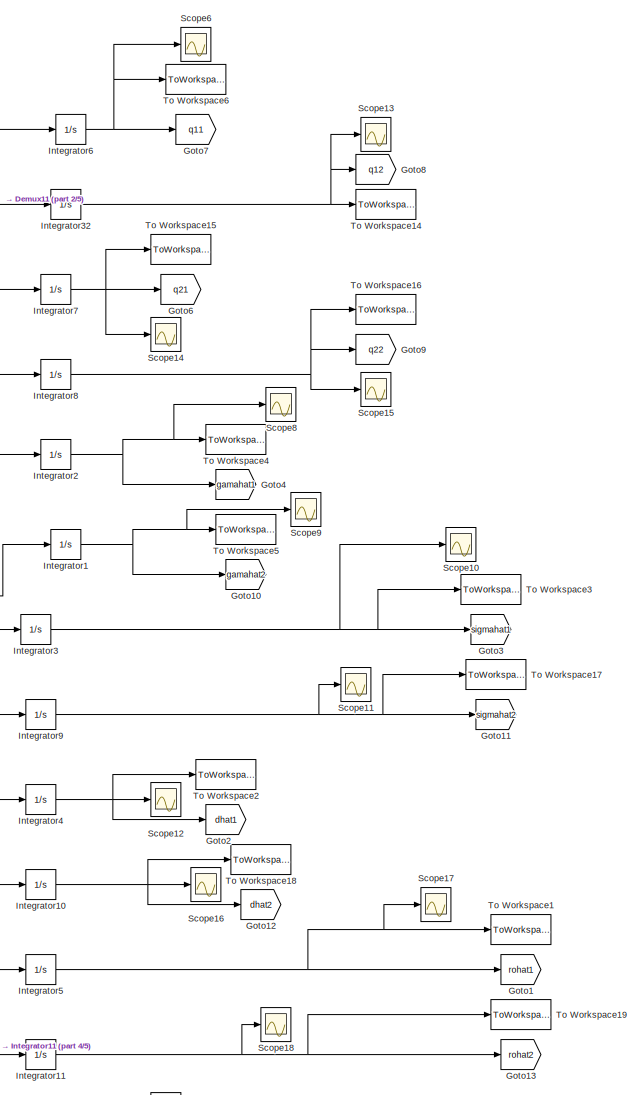
[diagram: root canvas - part 1/5, top right region]
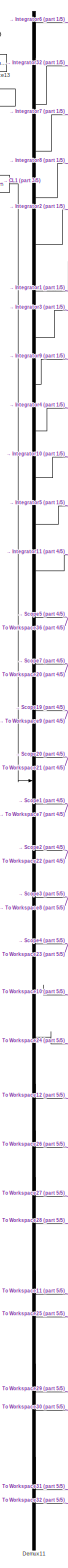
[diagram: root canvas - part 2/5, center side, full height]
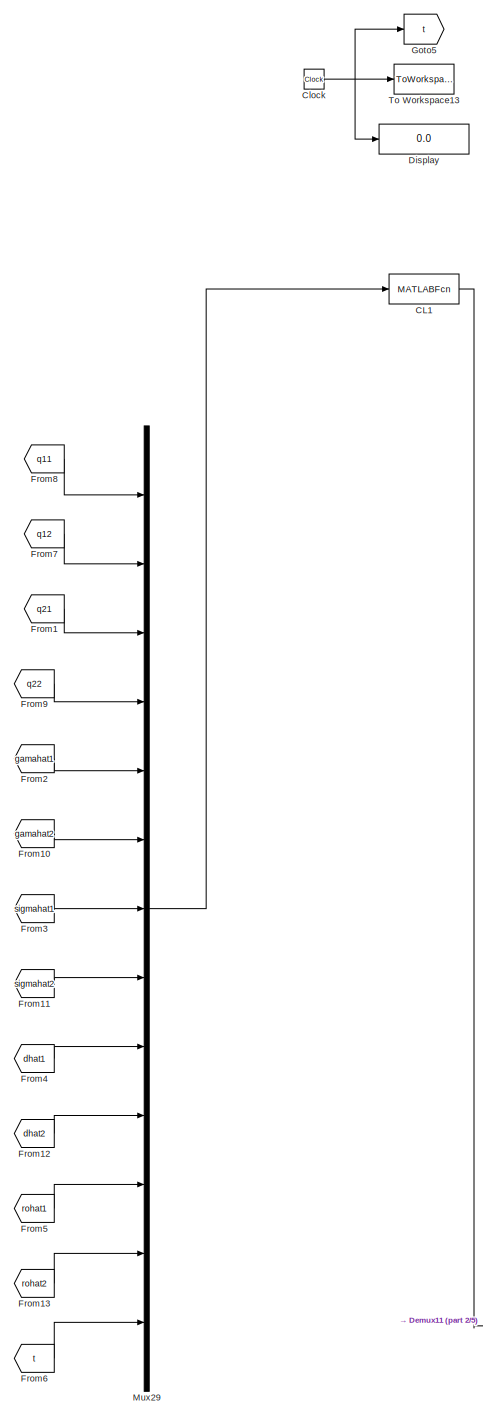
[diagram: root canvas - part 3/5, top left region]
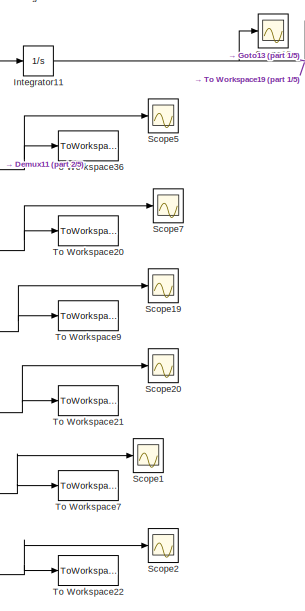
[diagram: root canvas - part 4/5, central region]
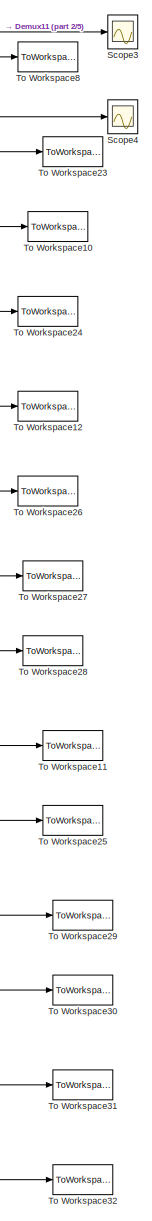
[diagram: root canvas - part 5/5, bottom center region]
MODEL slx_3bc52284052b
KIND model
CONFIG AbsTol = auto
CONFIG EnableMultiTasking = off
CONFIG FixedStep = auto
CONFIG MaxStep = auto
CONFIG MinStep = auto
CONFIG RelTol = 1e-3
CONFIG SampleTimeConstraint = Unconstrained
CONFIG SolverName = VariableStepAuto
CONFIG StartTime = 0.0
CONFIG StopTime = 10
BLOCK [MATLABFcn] CL1
  MATLABFcn = MEMS_fixedControl
  Output1D = off
  OutputDimensions = 32
  Ports = [1, 1]
BLOCK [Clock] Clock
  Decimation = 1000
BLOCK [Demux] Demux11
  Outputs = 32
  Ports = [1, 32]
BLOCK [Display] Display
  Decimation = 1000
  Ports = [1]
BLOCK [From] From1
  GotoTag = q21
  TagVisibility = global
BLOCK [From] From10
  GotoTag = gamahat2
  TagVisibility = global
BLOCK [From] From11
  GotoTag = sigmahat2
  TagVisibility = global
BLOCK [From] From12
  GotoTag = dhat2
  TagVisibility = global
BLOCK [From] From13
  GotoTag = rohat2
  TagVisibility = global
BLOCK [From] From2
  GotoTag = gamahat1
  TagVisibility = global
BLOCK [From] From3
  GotoTag = sigmahat1
  TagVisibility = global
BLOCK [From] From4
  GotoTag = dhat1
  TagVisibility = global
BLOCK [From] From5
  GotoTag = rohat1
  TagVisibility = global
BLOCK [From] From6
  GotoTag = t
  TagVisibility = global
BLOCK [From] From7
  GotoTag = q12
  TagVisibility = global
BLOCK [From] From8
  GotoTag = q11
  TagVisibility = global
BLOCK [From] From9
  GotoTag = q22
  TagVisibility = global
BLOCK [Goto] Goto1
  GotoTag = rohat1
  TagVisibility = global
BLOCK [Goto] Goto10
  GotoTag = gamahat2
  TagVisibility = global
BLOCK [Goto] Goto11
  GotoTag = sigmahat2
  TagVisibility = global
BLOCK [Goto] Goto12
  GotoTag = dhat2
  TagVisibility = global
BLOCK [Goto] Goto13
  GotoTag = rohat2
  TagVisibility = global
BLOCK [Goto] Goto2
  GotoTag = dhat1
  TagVisibility = global
BLOCK [Goto] Goto3
  GotoTag = sigmahat1
  TagVisibility = global
BLOCK [Goto] Goto4
  GotoTag = gamahat1
  TagVisibility = global
BLOCK [Goto] Goto5
  GotoTag = t
  TagVisibility = global
BLOCK [Goto] Goto6
  GotoTag = q21
  TagVisibility = global
BLOCK [Goto] Goto7
  GotoTag = q11
  TagVisibility = global
BLOCK [Goto] Goto8
  GotoTag = q12
  TagVisibility = global
BLOCK [Goto] Goto9
  GotoTag = q22
  TagVisibility = global
BLOCK [Integrator] Integrator1
  InitialCondition = -2
  Ports = [1, 1]
BLOCK [Integrator] Integrator10
  InitialCondition = 0.75
  Ports = [1, 1]
BLOCK [Integrator] Integrator11
  InitialCondition = 1
  Ports = [1, 1]
BLOCK [Integrator] Integrator2
  InitialCondition = -2
  Ports = [1, 1]
BLOCK [Integrator] Integrator3
  InitialCondition = -1.25
  Ports = [1, 1]
BLOCK [Integrator] Integrator32
  InitialCondition = -0.38
  Ports = [1, 1]
BLOCK [Integrator] Integrator4
  InitialCondition = 0.6
  Ports = [1, 1]
BLOCK [Integrator] Integrator5
  InitialCondition = 1
  Ports = [1, 1]
BLOCK [Integrator] Integrator6
  InitialCondition = -0.73
  Ports = [1, 1]
BLOCK [Integrator] Integrator7
  Ports = [1, 1]
BLOCK [Integrator] Integrator8
  Ports = [1, 1]
BLOCK [Integrator] Integrator9
  InitialCondition = -1.25
  Ports = [1, 1]
BLOCK [Mux] Mux29
  DisplayOption = bar
  Inputs = 13
  Ports = [13, 1]
BLOCK [Scope] Scope1
  Floating = off
  NumInputPorts = 1
  Ports = [1]
  ScopeSpecificationString = Simulink.scopes.TimeScopeBlockCfg('CurrentConfiguration', extmgr.ConfigurationSet(extmgr.Configuration('Core','General UI',true),extmgr.Configuration('Core','Source UI',true),extmgr.Configuration('Sources','WiredSimulink',true,'DataLoggingSaveFormat','StructureWithTime','DataLoggingLimitDataPoints',true,'DataLoggingDecimation','1','DataLoggingDecimateData',true,'DataLoggingVariableName','ScopeData...<+1715ch>  <repeated x3 — deduplicated; at blocks: Scope1, Scope10, Scope2>
BLOCK [Scope] Scope10
  Floating = off
  NumInputPorts = 1
  Ports = [1]
BLOCK [Scope] Scope11
  Floating = off
  NumInputPorts = 1
  Ports = [1]
  ScopeSpecificationString = Simulink.scopes.TimeScopeBlockCfg('CurrentConfiguration', extmgr.ConfigurationSet(extmgr.Configuration('Core','General UI',true),extmgr.Configuration('Core','Source UI',true),extmgr.Configuration('Sources','WiredSimulink',true,'DataLoggingSaveFormat','StructureWithTime','DataLoggingLimitDataPoints',true,'DataLoggingDecimation','1','DataLoggingDecimateData',true,'DataLoggingVariableName','ScopeData...<+1707ch>
BLOCK [Scope] Scope12
  Floating = off
  NumInputPorts = 1
  Ports = [1]
  ScopeSpecificationString = Simulink.scopes.TimeScopeBlockCfg('CurrentConfiguration', extmgr.ConfigurationSet(extmgr.Configuration('Core','General UI',true),extmgr.Configuration('Core','Source UI',true),extmgr.Configuration('Sources','WiredSimulink',true,'DataLoggingSaveFormat','StructureWithTime','DataLoggingLimitDataPoints',true,'DataLoggingDecimation','1','DataLoggingDecimateData',true,'DataLoggingVariableName','ScopeData...<+1713ch>  <repeated x4 — deduplicated; at blocks: Scope12, Scope14, Scope16, Scope18>
BLOCK [Scope] Scope13
  Floating = off
  NameLocation = right
  NumInputPorts = 1
  Ports = [1]
  ScopeSpecificationString = Simulink.scopes.TimeScopeBlockCfg('CurrentConfiguration', extmgr.ConfigurationSet(extmgr.Configuration('Core','General UI',true),extmgr.Configuration('Core','Source UI',true),extmgr.Configuration('Sources','WiredSimulink',true,'DataLoggingSaveFormat','StructureWithTime','DataLoggingLimitDataPoints',true,'DataLoggingDecimation','1','DataLoggingDecimateData',true,'DataLoggingVariableName','ScopeData...<+1727ch>
BLOCK [Scope] Scope14
  Floating = off
  NumInputPorts = 1
  Ports = [1]
BLOCK [Scope] Scope15
  Floating = off
  NumInputPorts = 1
  Ports = [1]
  ScopeSpecificationString = Simulink.scopes.TimeScopeBlockCfg('CurrentConfiguration', extmgr.ConfigurationSet(extmgr.Configuration('Core','General UI',true),extmgr.Configuration('Core','Source UI',true),extmgr.Configuration('Sources','WiredSimulink',true,'DataLoggingSaveFormat','StructureWithTime','DataLoggingLimitDataPoints',true,'DataLoggingDecimation','1','DataLoggingDecimateData',true,'DataLoggingVariableName','ScopeData...<+1716ch>
BLOCK [Scope] Scope16
  Floating = off
  NumInputPorts = 1
  Ports = [1]
BLOCK [Scope] Scope17
  Floating = off
  NumInputPorts = 1
  Ports = [1]
  ScopeSpecificationString = Simulink.scopes.TimeScopeBlockCfg('CurrentConfiguration', extmgr.ConfigurationSet(extmgr.Configuration('Core','General UI',true),extmgr.Configuration('Core','Source UI',true),extmgr.Configuration('Sources','WiredSimulink',true,'DataLoggingSaveFormat','StructureWithTime','DataLoggingLimitDataPoints',true,'DataLoggingDecimation','1','DataLoggingDecimateData',true,'DataLoggingVariableName','ScopeData...<+1719ch>
BLOCK [Scope] Scope18
  Floating = off
  NumInputPorts = 1
  Ports = [1]
BLOCK [Scope] Scope19
  Floating = off
  NumInputPorts = 1
  Ports = [1]
  ScopeSpecificationString = Simulink.scopes.TimeScopeBlockCfg('CurrentConfiguration', extmgr.ConfigurationSet(extmgr.Configuration('Core','General UI',true),extmgr.Configuration('Core','Source UI',true),extmgr.Configuration('Sources','WiredSimulink',true,'DataLoggingSaveFormat','StructureWithTime','DataLoggingLimitDataPoints',true,'DataLoggingDecimation','1','DataLoggingDecimateData',true,'DataLoggingVariableName','ScopeData...<+1736ch>
BLOCK [Scope] Scope2
  Floating = off
  NumInputPorts = 1
  Ports = [1]
BLOCK [Scope] Scope20
  Floating = off
  NumInputPorts = 1
  Ports = [1]
  ScopeSpecificationString = Simulink.scopes.TimeScopeBlockCfg('CurrentConfiguration', extmgr.ConfigurationSet(extmgr.Configuration('Core','General UI',true),extmgr.Configuration('Core','Source UI',true),extmgr.Configuration('Sources','WiredSimulink',true,'DataLoggingSaveFormat','StructureWithTime','DataLoggingLimitDataPoints',true,'DataLoggingDecimation','1','DataLoggingDecimateData',true,'DataLoggingVariableName','ScopeData...<+1732ch>
BLOCK [Scope] Scope3
  Floating = off
  NumInputPorts = 1
  Ports = [1]
  ScopeSpecificationString = Simulink.scopes.TimeScopeBlockCfg('CurrentConfiguration', extmgr.ConfigurationSet(extmgr.Configuration('Core','General UI',true),extmgr.Configuration('Core','Source UI',true),extmgr.Configuration('Sources','WiredSimulink',true,'DataLoggingSaveFormat','StructureWithTime','DataLoggingLimitDataPoints',true,'DataLoggingDecimation','1','DataLoggingDecimateData',true,'DataLoggingVariableName','ScopeData...<+1718ch>
BLOCK [Scope] Scope4
  Floating = off
  NumInputPorts = 1
  Ports = [1]
  ScopeSpecificationString = Simulink.scopes.TimeScopeBlockCfg('CurrentConfiguration', extmgr.ConfigurationSet(extmgr.Configuration('Core','General UI',true),extmgr.Configuration('Core','Source UI',true),extmgr.Configuration('Sources','WiredSimulink',true,'DataLoggingSaveFormat','StructureWithTime','DataLoggingLimitDataPoints',true,'DataLoggingDecimation','1','DataLoggingDecimateData',true,'DataLoggingVariableName','ScopeData...<+1717ch>
BLOCK [Scope] Scope5
  Floating = off
  NumInputPorts = 1
  Ports = [1]
  ScopeSpecificationString = Simulink.scopes.TimeScopeBlockCfg('CurrentConfiguration', extmgr.ConfigurationSet(extmgr.Configuration('Core','General UI',true),extmgr.Configuration('Core','Source UI',true),extmgr.Configuration('Sources','WiredSimulink',true,'DataLoggingSaveFormat','StructureWithTime','DataLoggingLimitDataPoints',true,'DataLoggingDecimation','1','DataLoggingDecimateData',true,'DataLoggingVariableName','ScopeData...<+1739ch>
BLOCK [Scope] Scope6
  Floating = off
  NumInputPorts = 1
  Ports = [1]
  ScopeSpecificationString = Simulink.scopes.TimeScopeBlockCfg('CurrentConfiguration', extmgr.ConfigurationSet(extmgr.Configuration('Core','General UI',true),extmgr.Configuration('Core','Source UI',true),extmgr.Configuration('Sources','WiredSimulink',true,'DataLoggingSaveFormat','StructureWithTime','DataLoggingLimitDataPoints',true,'DataLoggingDecimation','1','DataLoggingDecimateData',true,'DataLoggingVariableName','ScopeData...<+1721ch>
BLOCK [Scope] Scope7
  Floating = off
  NumInputPorts = 1
  Ports = [1]
  ScopeSpecificationString = Simulink.scopes.TimeScopeBlockCfg('CurrentConfiguration', extmgr.ConfigurationSet(extmgr.Configuration('Core','General UI',true),extmgr.Configuration('Core','Source UI',true),extmgr.Configuration('Sources','WiredSimulink',true,'DataLoggingSaveFormat','StructureWithTime','DataLoggingLimitDataPoints',true,'DataLoggingDecimation','1','DataLoggingDecimateData',true,'DataLoggingVariableName','ScopeData...<+1765ch>
BLOCK [Scope] Scope8
  Floating = off
  NumInputPorts = 1
  Ports = [1]
  ScopeSpecificationString = Simulink.scopes.TimeScopeBlockCfg('CurrentConfiguration', extmgr.ConfigurationSet(extmgr.Configuration('Core','General UI',true),extmgr.Configuration('Core','Source UI',true),extmgr.Configuration('Sources','WiredSimulink',true,'DataLoggingSaveFormat','StructureWithTime','DataLoggingLimitDataPoints',true,'DataLoggingDecimation','1','DataLoggingDecimateData',true,'DataLoggingVariableName','ScopeData...<+1718ch>
BLOCK [Scope] Scope9
  Floating = off
  NumInputPorts = 1
  Ports = [1]
  ScopeSpecificationString = Simulink.scopes.TimeScopeBlockCfg('CurrentConfiguration', extmgr.ConfigurationSet(extmgr.Configuration('Core','General UI',true),extmgr.Configuration('Core','Source UI',true),extmgr.Configuration('Sources','WiredSimulink',true,'DataLoggingSaveFormat','StructureWithTime','DataLoggingLimitDataPoints',true,'DataLoggingDecimation','1','DataLoggingDecimateData',true,'DataLoggingVariableName','ScopeData...<+1716ch>
BLOCK [ToWorkspace] To Workspace1
  MaxDataPoints = inf
  Ports = [1]
  SampleTime = 0.001
  Save2DSignal = 2-D array (concatenate along first dimension)
  VariableName = rohat1
BLOCK [ToWorkspace] To Workspace10
  MaxDataPoints = inf
  Ports = [1]
  SampleTime = 0.001
  Save2DSignal = 2-D array (concatenate along first dimension)
  VariableName = p1
BLOCK [ToWorkspace] To Workspace11
  MaxDataPoints = inf
  Ports = [1]
  SampleTime = 0.001
  Save2DSignal = 2-D array (concatenate along first dimension)
  VariableName = sigma1
BLOCK [ToWorkspace] To Workspace12
  MaxDataPoints = inf
  Ports = [1]
  SampleTime = 0.001
  Save2DSignal = 2-D array (concatenate along first dimension)
  VariableName = x1des
BLOCK [ToWorkspace] To Workspace13
  MaxDataPoints = inf
  Ports = [1]
  SampleTime = 0.001
  Save2DSignal = 2-D array (concatenate along first dimension)
  VariableName = t
BLOCK [ToWorkspace] To Workspace14
  MaxDataPoints = inf
  Ports = [1]
  SampleTime = 0.001
  Save2DSignal = 2-D array (concatenate along first dimension)
  VariableName = q12
BLOCK [ToWorkspace] To Workspace15
  MaxDataPoints = inf
  Ports = [1]
  SampleTime = 0.001
  Save2DSignal = 2-D array (concatenate along first dimension)
  VariableName = q21
BLOCK [ToWorkspace] To Workspace16
  MaxDataPoints = inf
  Ports = [1]
  SampleTime = 0.001
  Save2DSignal = 2-D array (concatenate along first dimension)
  VariableName = q22
BLOCK [ToWorkspace] To Workspace17
  MaxDataPoints = inf
  Ports = [1]
  SampleTime = 0.001
  Save2DSignal = 2-D array (concatenate along first dimension)
  VariableName = sigmahat2
BLOCK [ToWorkspace] To Workspace18
  MaxDataPoints = inf
  Ports = [1]
  SampleTime = 0.001
  Save2DSignal = 2-D array (concatenate along first dimension)
  VariableName = dhat2
BLOCK [ToWorkspace] To Workspace19
  MaxDataPoints = inf
  Ports = [1]
  SampleTime = 0.001
  Save2DSignal = 2-D array (concatenate along first dimension)
  VariableName = rohat2
BLOCK [ToWorkspace] To Workspace2
  MaxDataPoints = inf
  Ports = [1]
  SampleTime = 0.001
  Save2DSignal = 2-D array (concatenate along first dimension)
  VariableName = dhat1
BLOCK [ToWorkspace] To Workspace20
  MaxDataPoints = inf
  Ports = [1]
  SampleTime = 0.001
  Save2DSignal = 2-D array (concatenate along first dimension)
  VariableName = u2
BLOCK [ToWorkspace] To Workspace21
  MaxDataPoints = inf
  Ports = [1]
  SampleTime = 0.001
  Save2DSignal = 2-D array (concatenate along first dimension)
  VariableName = epsilon2
BLOCK [ToWorkspace] To Workspace22
  MaxDataPoints = inf
  Ports = [1]
  SampleTime = 0.001
  Save2DSignal = 2-D array (concatenate along first dimension)
  VariableName = e12
BLOCK [ToWorkspace] To Workspace23
  MaxDataPoints = inf
  Ports = [1]
  SampleTime = 0.001
  Save2DSignal = 2-D array (concatenate along first dimension)
  VariableName = e22
BLOCK [ToWorkspace] To Workspace24
  MaxDataPoints = inf
  Ports = [1]
  SampleTime = 0.001
  Save2DSignal = 2-D array (concatenate along first dimension)
  VariableName = p2
BLOCK [ToWorkspace] To Workspace25
  MaxDataPoints = inf
  Ports = [1]
  SampleTime = 0.001
  Save2DSignal = 2-D array (concatenate along first dimension)
  VariableName = sigma2
BLOCK [ToWorkspace] To Workspace26
  MaxDataPoints = inf
  Ports = [1]
  SampleTime = 0.001
  Save2DSignal = 2-D array (concatenate along first dimension)
  VariableName = y1des
BLOCK [ToWorkspace] To Workspace27
  MaxDataPoints = inf
  Ports = [1]
  SampleTime = 0.001
  Save2DSignal = 2-D array (concatenate along first dimension)
  VariableName = gama1
BLOCK [ToWorkspace] To Workspace28
  MaxDataPoints = inf
  Ports = [1]
  SampleTime = 0.001
  Save2DSignal = 2-D array (concatenate along first dimension)
  VariableName = gama2
BLOCK [ToWorkspace] To Workspace29
  MaxDataPoints = inf
  Ports = [1]
  SampleTime = 0.001
  Save2DSignal = 2-D array (concatenate along first dimension)
  VariableName = d1
BLOCK [ToWorkspace] To Workspace3
  MaxDataPoints = inf
  Ports = [1]
  SampleTime = 0.001
  Save2DSignal = 2-D array (concatenate along first dimension)
  VariableName = sigmahat1
BLOCK [ToWorkspace] To Workspace30
  MaxDataPoints = inf
  Ports = [1]
  SampleTime = 0.001
  Save2DSignal = 2-D array (concatenate along first dimension)
  VariableName = d2
BLOCK [ToWorkspace] To Workspace31
  MaxDataPoints = inf
  Ports = [1]
  SampleTime = 0.001
  Save2DSignal = 2-D array (concatenate along first dimension)
  VariableName = ro1
BLOCK [ToWorkspace] To Workspace32
  MaxDataPoints = inf
  Ports = [1]
  SampleTime = 0.001
  Save2DSignal = 2-D array (concatenate along first dimension)
  VariableName = ro2
BLOCK [ToWorkspace] To Workspace36
  MaxDataPoints = inf
  Ports = [1]
  SampleTime = 0.001
  Save2DSignal = 2-D array (concatenate along first dimension)
  VariableName = u1
BLOCK [ToWorkspace] To Workspace4
  MaxDataPoints = inf
  Ports = [1]
  SampleTime = 0.001
  Save2DSignal = 2-D array (concatenate along first dimension)
  VariableName = gamahat1
BLOCK [ToWorkspace] To Workspace5
  MaxDataPoints = inf
  Ports = [1]
  SampleTime = 0.001
  Save2DSignal = 2-D array (concatenate along first dimension)
  VariableName = gamahat2
BLOCK [ToWorkspace] To Workspace6
  MaxDataPoints = inf
  Ports = [1]
  SampleTime = 0.001
  Save2DSignal = 2-D array (concatenate along first dimension)
  VariableName = q11
BLOCK [ToWorkspace] To Workspace7
  MaxDataPoints = inf
  Ports = [1]
  SampleTime = 0.001
  Save2DSignal = 2-D array (concatenate along first dimension)
  VariableName = e11
BLOCK [ToWorkspace] To Workspace8
  MaxDataPoints = inf
  Ports = [1]
  SampleTime = 0.001
  Save2DSignal = 2-D array (concatenate along first dimension)
  VariableName = e21
BLOCK [ToWorkspace] To Workspace9
  MaxDataPoints = inf
  Ports = [1]
  SampleTime = 0.001
  Save2DSignal = 2-D array (concatenate along first dimension)
  VariableName = epsilon1
LINE CL1:1 -> Demux11:1
NET Clock:1 -> Display:1, Goto5:1, To Workspace13:1
LINE Demux11:1 -> Integrator6:1
LINE Demux11:10 -> Integrator10:1
LINE Demux11:11 -> Integrator5:1
LINE Demux11:12 -> Integrator11:1
NET Demux11:13 -> Scope5:1, To Workspace36:1
NET Demux11:14 -> Scope7:1, To Workspace20:1
NET Demux11:15 -> Scope19:1, To Workspace9:1
NET Demux11:16 -> Scope20:1, To Workspace21:1
NET Demux11:17 -> Scope1:1, To Workspace7:1
NET Demux11:18 -> Scope2:1, To Workspace22:1
NET Demux11:19 -> Scope3:1, To Workspace8:1
LINE Demux11:2 -> Integrator32:1
NET Demux11:20 -> Scope4:1, To Workspace23:1
LINE Demux11:21 -> To Workspace10:1
LINE Demux11:22 -> To Workspace24:1
LINE Demux11:23 -> To Workspace12:1
LINE Demux11:24 -> To Workspace26:1
LINE Demux11:25 -> To Workspace27:1
LINE Demux11:26 -> To Workspace28:1
LINE Demux11:27 -> To Workspace11:1
LINE Demux11:28 -> To Workspace25:1
LINE Demux11:29 -> To Workspace29:1
LINE Demux11:3 -> Integrator7:1
LINE Demux11:30 -> To Workspace30:1
LINE Demux11:31 -> To Workspace31:1
LINE Demux11:32 -> To Workspace32:1
LINE Demux11:4 -> Integrator8:1
LINE Demux11:5 -> Integrator2:1
LINE Demux11:6 -> Integrator1:1
LINE Demux11:7 -> Integrator3:1
LINE Demux11:8 -> Integrator9:1
LINE Demux11:9 -> Integrator4:1
LINE From10:1 -> Mux29:6
LINE From11:1 -> Mux29:8
LINE From12:1 -> Mux29:10
LINE From13:1 -> Mux29:12
LINE From1:1 -> Mux29:3
LINE From2:1 -> Mux29:5
LINE From3:1 -> Mux29:7
LINE From4:1 -> Mux29:9
LINE From5:1 -> Mux29:11
LINE From6:1 -> Mux29:13
LINE From7:1 -> Mux29:2
LINE From8:1 -> Mux29:1
LINE From9:1 -> Mux29:4
NET Integrator10:1 -> Goto12:1, Scope16:1, To Workspace18:1
NET Integrator11:1 -> Goto13:1, Scope18:1, To Workspace19:1
NET Integrator1:1 -> Goto10:1, Scope9:1, To Workspace5:1
NET Integrator2:1 -> Goto4:1, Scope8:1, To Workspace4:1
NET Integrator32:1 -> Goto8:1, Scope13:1, To Workspace14:1
NET Integrator3:1 -> Goto3:1, Scope10:1, To Workspace3:1
NET Integrator4:1 -> Goto2:1, Scope12:1, To Workspace2:1
NET Integrator5:1 -> Goto1:1, Scope17:1, To Workspace1:1
NET Integrator6:1 -> Goto7:1, Scope6:1, To Workspace6:1
NET Integrator7:1 -> Goto6:1, Scope14:1, To Workspace15:1
NET Integrator8:1 -> Goto9:1, Scope15:1, To Workspace16:1
NET Integrator9:1 -> Goto11:1, Scope11:1, To Workspace17:1
LINE Mux29:1 -> CL1:1
note: NET lines group one-source signal fan-out (src -> all destinations, sorted); 1:1 wires keep LINE
